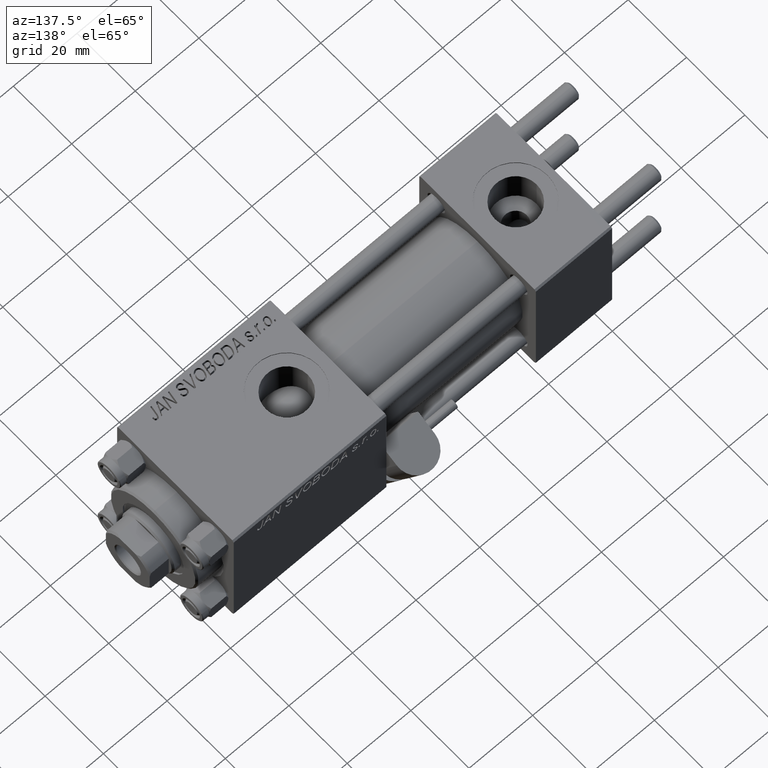
[diagram: clean part render]
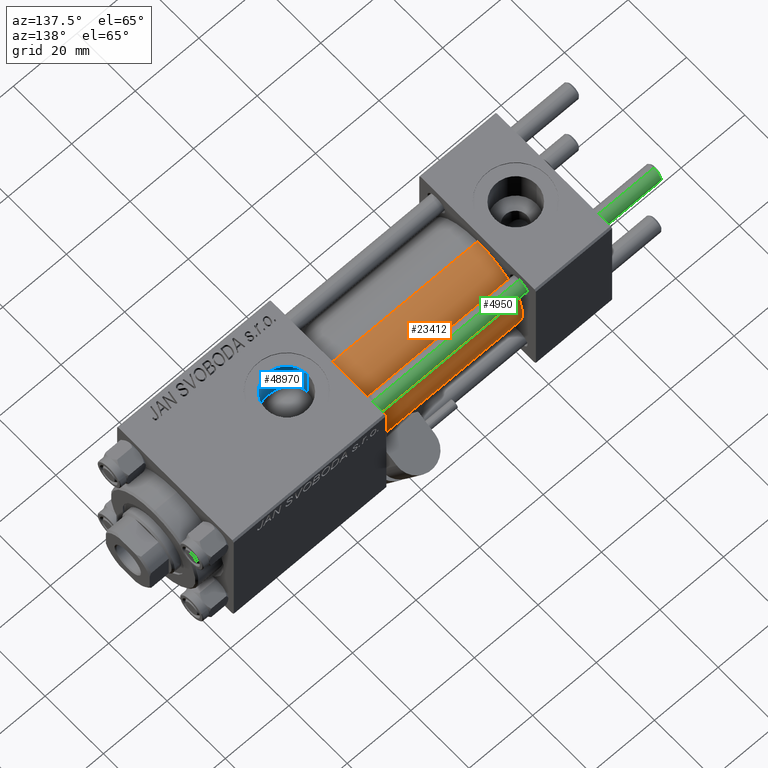
[diagram: same view with three faces highlighted in distinct colors, each labeled with its STEP entity id]
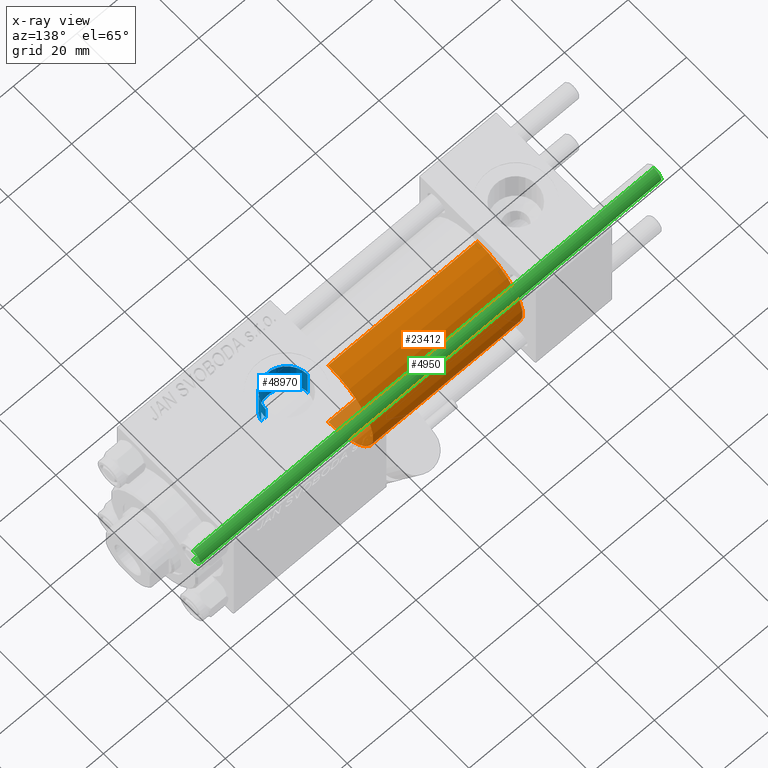
[diagram: x-ray of the same camera — body ghosted, the three highlighted faces saturated]
A machine part, auxiliary view with three faces highlighted in distinct colors.
The next image is the same camera in x-ray (body ghosted, the three faces saturated) — at least one of them is partly hidden behind the body in this view.
Their STEP definitions:

[orange] entity #23412 — the highlighted cylindrical surface (partial cylindrical patch) has radius 15.5 mm, axis along (-1, -0, -0).
#519 = DIRECTION ( 'NONE',  ( 0.000000000000000000, 0.000000000000000000, -1.000000000000000000 ) ) ;
#1737 = CARTESIAN_POINT ( 'NONE',  ( 71.00000000000001421, 0.000000000000000000, 15.50000000000000000 ) ) ;
#1987 = VECTOR ( 'NONE', #31529, 1000.000000000000000 ) ;
#4067 = EDGE_CURVE ( 'NONE', #33613, #42133, #45299, .T. ) ;
#7397 = LINE ( 'NONE', #11504, #1987 ) ;
#7770 = CARTESIAN_POINT ( 'NONE',  ( 71.00000000000001421, 0.000000000000000000, 0.000000000000000000 ) ) ;
#8274 = CYLINDRICAL_SURFACE ( 'NONE', #44894, 15.50000000000000000 ) ;
#8680 = LINE ( 'NONE', #1737, #50534 ) ;
#8691 = CARTESIAN_POINT ( 'NONE',  ( 71.00000000000001421, 0.000000000000000000, 15.50000000000000000 ) ) ;
#8722 = ORIENTED_EDGE ( 'NONE', *, *, #4067, .F. ) ;
#8725 = DIRECTION ( 'NONE',  ( 1.000000000000000000, 0.000000000000000000, 0.000000000000000000 ) ) ;
#11504 = CARTESIAN_POINT ( 'NONE',  ( 71.00000000000001421, 1.898202538678397557E-15, -15.50000000000000000 ) ) ;
#15032 = EDGE_CURVE ( 'NONE', #33613, #45738, #7397, .T. ) ;
#15347 = CIRCLE ( 'NONE', #40792, 15.50000000000000000 ) ;
#16229 = FACE_OUTER_BOUND ( 'NONE', #45520, .T. ) ;
#20774 = CARTESIAN_POINT ( 'NONE',  ( 71.00000000000001421, 0.000000000000000000, 0.000000000000000000 ) ) ;
#21261 = EDGE_CURVE ( 'NONE', #42133, #22889, #8680, .T. ) ;
#22889 = VERTEX_POINT ( 'NONE', #30825 ) ;
#23347 = EDGE_CURVE ( 'NONE', #45738, #22889, #15347, .T. ) ;
#23412 = ADVANCED_FACE ( 'NONE', ( #16229 ), #8274, .T. ) ;
#23426 = DIRECTION ( 'NONE',  ( 0.000000000000000000, 0.000000000000000000, 1.000000000000000000 ) ) ;
#23830 = CARTESIAN_POINT ( 'NONE',  ( 24.00000000000000000, 1.898202538678397557E-15, -15.50000000000000000 ) ) ;
#28029 = CARTESIAN_POINT ( 'NONE',  ( 71.00000000000001421, 1.898202538678397557E-15, -15.50000000000000000 ) ) ;
#28248 = ORIENTED_EDGE ( 'NONE', *, *, #15032, .T. ) ;
#30643 = CARTESIAN_POINT ( 'NONE',  ( 24.00000000000000000, 0.000000000000000000, 0.000000000000000000 ) ) ;
#30825 = CARTESIAN_POINT ( 'NONE',  ( 24.00000000000000000, 0.000000000000000000, 15.50000000000000000 ) ) ;
#31529 = DIRECTION ( 'NONE',  ( -1.000000000000000000, -0.000000000000000000, -0.000000000000000000 ) ) ;
#33483 = DIRECTION ( 'NONE',  ( 1.000000000000000000, 0.000000000000000000, 0.000000000000000000 ) ) ;
#33613 = VERTEX_POINT ( 'NONE', #28029 ) ;
#34745 = DIRECTION ( 'NONE',  ( -1.000000000000000000, -0.000000000000000000, -0.000000000000000000 ) ) ;
#38735 = AXIS2_PLACEMENT_3D ( 'NONE', #20774, #8725, #519 ) ;
#38992 = ORIENTED_EDGE ( 'NONE', *, *, #21261, .F. ) ;
#40792 = AXIS2_PLACEMENT_3D ( 'NONE', #30643, #33483, #42204 ) ;
#42133 = VERTEX_POINT ( 'NONE', #8691 ) ;
#42204 = DIRECTION ( 'NONE',  ( 0.000000000000000000, 0.000000000000000000, 1.000000000000000000 ) ) ;
#44894 = AXIS2_PLACEMENT_3D ( 'NONE', #7770, #34745, #23426 ) ;
#45299 = CIRCLE ( 'NONE', #38735, 15.50000000000000000 ) ;
#45520 = EDGE_LOOP ( 'NONE', ( #8722, #28248, #46235, #38992 ) ) ;
#45738 = VERTEX_POINT ( 'NONE', #23830 ) ;
#46235 = ORIENTED_EDGE ( 'NONE', *, *, #23347, .T. ) ;
#48459 = DIRECTION ( 'NONE',  ( -1.000000000000000000, -0.000000000000000000, -0.000000000000000000 ) ) ;
#50534 = VECTOR ( 'NONE', #48459, 1000.000000000000000 ) ;

[blue] entity #48970 — the highlighted cylindrical surface (edge-blend (fillet) strip) has radius 6.58 mm, axis along (0, 0, -1).
#1628 = CARTESIAN_POINT ( 'NONE',  ( 77.56705469300284506, -1.397686090543303283, 9.903818455115036556 ) ) ;
#1880 = CARTESIAN_POINT ( 'NONE',  ( 89.01171256368644435, -4.281038711601321545, 9.043476487246550732 ) ) ;
#2135 = CARTESIAN_POINT ( 'NONE',  ( 89.68316260257665817, -3.338928794743214468, 9.433056230293079381 ) ) ;
#2418 = EDGE_CURVE ( 'NONE', #23406, #45169, #11478, .T. ) ;
#2578 = VERTEX_POINT ( 'NONE', #9646 ) ;
#2648 = CARTESIAN_POINT ( 'NONE',  ( 90.58000000000156149, -0.3230844264541308797, 14.99999999999999822 ) ) ;
#3185 = EDGE_CURVE ( 'NONE', #26841, #23406, #41148, .T. ) ;
#3814 = EDGE_CURVE ( 'NONE', #24486, #2578, #40617, .T. ) ;
#5460 = CARTESIAN_POINT ( 'NONE',  ( 83.43610688730976221, -6.558932760434257325, 7.548550817887899278 ) ) ;
#5716 = CARTESIAN_POINT ( 'NONE',  ( 78.57242859662287060, -3.724876030303978069, 9.281895439158068584 ) ) ;
#5966 = CARTESIAN_POINT ( 'NONE',  ( 81.50365122394816808, -6.100731835174567408, 7.925108619061488113 ) ) ;
#6226 = CARTESIAN_POINT ( 'NONE',  ( 83.84132420776212768, -6.581215419008478840, 7.529131557805247787 ) ) ;
#6485 = CARTESIAN_POINT ( 'NONE',  ( 90.03601729897108896, -2.648259396322893089, 9.649752199410302822 ) ) ;
#6605 = ORIENTED_EDGE ( 'NONE', *, *, #35979, .T. ) ;
#7189 = DIRECTION ( 'NONE',  ( 1.000000000000000000, 0.000000000000000000, 0.000000000000000000 ) ) ;
#9310 = CARTESIAN_POINT ( 'NONE',  ( 78.16834223545102134, -3.071777053897142729, 9.522948337697433985 ) ) ;
#9567 = CARTESIAN_POINT ( 'NONE',  ( 86.39211994537743067, -6.132805105780794186, 7.899218132206713427 ) ) ;
#9646 = CARTESIAN_POINT ( 'NONE',  ( 90.30000000000001137, -1.899052395280420136, 14.87930105885285670 ) ) ;
#9820 = CARTESIAN_POINT ( 'NONE',  ( 86.92434068310684836, -5.907044672534588869, 8.071096920454994716 ) ) ;
#9827 = CARTESIAN_POINT ( 'NONE',  ( 90.39284622331669539, -1.591040247564623700, 14.91861279833453757 ) ) ;
#10070 = CARTESIAN_POINT ( 'NONE',  ( 88.75695250607545006, -4.561896889324866144, 8.903678834413629062 ) ) ;
#10344 = CARTESIAN_POINT ( 'NONE',  ( 90.30000000000001137, -1.899052395280420136, 14.87930105885285670 ) ) ;
#11478 = LINE ( 'NONE', #31502, #23879 ) ;
#13172 = CARTESIAN_POINT ( 'NONE',  ( 90.18384735178129574, -2.284382302762963501, 9.743491762341799145 ) ) ;
#13421 = CARTESIAN_POINT ( 'NONE',  ( 86.21002104074251804, -6.200884946022790167, 7.845702732414576275 ) ) ;
#13671 = CARTESIAN_POINT ( 'NONE',  ( 78.46622740148208663, -3.565203004854784474, 9.344512687240586146 ) ) ;
#13923 = CARTESIAN_POINT ( 'NONE',  ( 84.04743762832036680, -6.582974628388996940, 7.527585999843090292 ) ) ;
#14111 = B_SPLINE_CURVE_WITH_KNOTS ( 'NONE', 3,
 ( #43736, #13172, #6485, #2135, #49106, #1880, #10070, #45516, #33453, #40649, #28835, #32691, #9820, #9567, #13421, #45253, #25476, #45010, #48855, #13923, #6226, #5460, #29855, #25227, #41411, #41671, #41147, #5966, #17771, #21371, #44496, #33198, #21117, #40907, #21880, #5716, #13671, #9310, #37822, #37055, #29348, #22138, #1628, #37567, #17517, #17012 ),
 .UNSPECIFIED., .F., .F.,
 ( 4, 2, 2, 2, 2, 2, 2, 2, 2, 2, 2, 2, 2, 2, 2, 2, 2, 2, 2, 2, 2, 2, 4 ),
 ( 0.000000000000000000, 0.001207791230099372441, 0.002415582460198744882, 0.003623373690298115155, 0.004227269305347786631, 0.004831164920397457672, 0.006038956150496800623, 0.006642851765546489880, 0.007246747380596180003, 0.008454538610695601017, 0.009058434225745329305, 0.009662329840795061062, 0.01026622545584479108, 0.01087012107089451937, 0.01207791230099397942, 0.01328570353109343946, 0.01449349476119290124, 0.01509739037624264514, 0.01570128599129239078, 0.01690907722139185429, 0.01751297283644158778, 0.01811686845149132127, 0.01932465968159079173 ),
 .UNSPECIFIED. ) ;
#15728 = DIRECTION ( 'NONE',  ( 0.000000000000000000, 0.000000000000000000, -1.000000000000000000 ) ) ;
#16722 = CARTESIAN_POINT ( 'NONE',  ( 90.30000000000001137, -1.899052395280420136, 42.80000000000000426 ) ) ;
#17012 = CARTESIAN_POINT ( 'NONE',  ( 77.41999999999846693, 1.225496641077837722E-15, 9.999999999999998224 ) ) ;
#17517 = CARTESIAN_POINT ( 'NONE',  ( 77.41999999999848114, -0.4081853129699585803, 10.00000000000000711 ) ) ;
#17771 = CARTESIAN_POINT ( 'NONE',  ( 81.15150766959031614, -5.943877247083126925, 8.044991576418468071 ) ) ;
#18921 = VECTOR ( 'NONE', #22802, 1000.000000000000000 ) ;
#19332 = CARTESIAN_POINT ( 'NONE',  ( 84.00000000000000000, -1.734723475976806897E-15, 42.80000000000000426 ) ) ;
#20328 = ORIENTED_EDGE ( 'NONE', *, *, #3814, .F. ) ;
#20346 = DIRECTION ( 'NONE',  ( -1.000000000000000000, 0.000000000000000000, 0.000000000000000000 ) ) ;
#20362 = ORIENTED_EDGE ( 'NONE', *, *, #2418, .F. ) ;
#21086 = DIRECTION ( 'NONE',  ( -0.000000000000000000, -0.000000000000000000, 1.000000000000000000 ) ) ;
#21117 = CARTESIAN_POINT ( 'NONE',  ( 79.29730408322323854, -4.618177244596259889, 8.875509752877485781 ) ) ;
#21371 = CARTESIAN_POINT ( 'NONE',  ( 80.48004077057568395, -5.572564248888139282, 8.306509127488531874 ) ) ;
#21880 = CARTESIAN_POINT ( 'NONE',  ( 78.79875737437667738, -4.034886358906389248, 9.151392050136836431 ) ) ;
#22138 = CARTESIAN_POINT ( 'NONE',  ( 77.61241581301695192, -1.592248641449762747, 9.874366003595781649 ) ) ;
#22802 = DIRECTION ( 'NONE',  ( 0.000000000000000000, 0.000000000000000000, -1.000000000000000000 ) ) ;
#23406 = VERTEX_POINT ( 'NONE', #24188 ) ;
#23789 = DIRECTION ( 'NONE',  ( 0.000000000000000000, 0.000000000000000000, -1.000000000000000000 ) ) ;
#23879 = VECTOR ( 'NONE', #23789, 1000.000000000000000 ) ;
#24188 = CARTESIAN_POINT ( 'NONE',  ( 77.41999999999846693, -1.734723475976806897E-15, 19.80000000000000071 ) ) ;
#24486 = VERTEX_POINT ( 'NONE', #49852 ) ;
#25227 = CARTESIAN_POINT ( 'NONE',  ( 82.83871781191031403, -6.479820246555592966, 7.616654439233103702 ) ) ;
#25476 = CARTESIAN_POINT ( 'NONE',  ( 85.64143006621837628, -6.375121249720390182, 7.704616833470068649 ) ) ;
#25740 = CARTESIAN_POINT ( 'NONE',  ( 90.46247493449395449, -1.278752734038846484, 14.94875937294843737 ) ) ;
#26313 = CARTESIAN_POINT ( 'NONE',  ( 90.58000000000154728, -9.289058821376599092E-16, 19.80000000000000071 ) ) ;
#26316 = EDGE_CURVE ( 'NONE', #24486, #45169, #14111, .T. ) ;
#26841 = VERTEX_POINT ( 'NONE', #26313 ) ;
#27027 = ORIENTED_EDGE ( 'NONE', *, *, #35102, .T. ) ;
#27267 = B_SPLINE_CURVE_WITH_KNOTS ( 'NONE', 3,
 ( #45018, #2648, #49113, #25740, #9827, #10344 ),
 .UNSPECIFIED., .F., .F.,
 ( 4, 2, 4 ),
 ( 0.001923267627926015643, 0.002881828648815649985, 0.003840389669705283893 ),
 .UNSPECIFIED. ) ;
#27557 = FACE_OUTER_BOUND ( 'NONE', #36613, .T. ) ;
#28835 = CARTESIAN_POINT ( 'NONE',  ( 87.74050804270864035, -5.416766998257490862, 8.406790300727948306 ) ) ;
#29348 = CARTESIAN_POINT ( 'NONE',  ( 77.72104259078042787, -1.977670684214428043, 9.804446867313098224 ) ) ;
#29855 = CARTESIAN_POINT ( 'NONE',  ( 83.23563096081821300, -6.538530929802691460, 7.566314066596407706 ) ) ;
#31502 = CARTESIAN_POINT ( 'NONE',  ( 77.41999999999846693, -1.734723475976806897E-15, 42.80000000000000426 ) ) ;
#32691 = CARTESIAN_POINT ( 'NONE',  ( 87.26053252520590320, -5.728070196491263921, 8.200680661955367157 ) ) ;
#32984 = VECTOR ( 'NONE', #21086, 1000.000000000000000 ) ;
#33198 = CARTESIAN_POINT ( 'NONE',  ( 79.57031396582577543, -4.880372653833860319, 8.732632965334568453 ) ) ;
#33453 = CARTESIAN_POINT ( 'NONE',  ( 88.19718467613775204, -5.071121963172631197, 8.619888602053425330 ) ) ;
#35102 = EDGE_CURVE ( 'NONE', #26841, #45793, #38721, .T. ) ;
#35419 = CARTESIAN_POINT ( 'NONE',  ( 84.00000000000000000, -1.734723475976806897E-15, 19.80000000000000071 ) ) ;
#35476 = ORIENTED_EDGE ( 'NONE', *, *, #26316, .T. ) ;
#35979 = EDGE_CURVE ( 'NONE', #45793, #2578, #27267, .T. ) ;
#36613 = EDGE_LOOP ( 'NONE', ( #45232, #27027, #6605, #20328, #35476, #20362 ) ) ;
#37055 = CARTESIAN_POINT ( 'NONE',  ( 77.78468472322818172, -2.169203254887546617, 9.763745855050723677 ) ) ;
#37567 = CARTESIAN_POINT ( 'NONE',  ( 77.45763783829498550, -0.8084208477571691587, 9.975121118623741623 ) ) ;
#37728 = CARTESIAN_POINT ( 'NONE',  ( 90.58000000000154728, -9.289058821376597120E-16, 42.80000000000000426 ) ) ;
#37822 = CARTESIAN_POINT ( 'NONE',  ( 77.99714712711040931, -2.723766581249583485, 9.629423614267258458 ) ) ;
#38721 = LINE ( 'NONE', #37728, #18921 ) ;
#40617 = LINE ( 'NONE', #16722, #32984 ) ;
#40649 = CARTESIAN_POINT ( 'NONE',  ( 87.89699318866286148, -5.305288046703262594, 8.477775428654018341 ) ) ;
#40907 = CARTESIAN_POINT ( 'NONE',  ( 78.91948560029506154, -4.185857250486422210, 9.083179932574980242 ) ) ;
#41147 = CARTESIAN_POINT ( 'NONE',  ( 82.06128195139868353, -6.290973204691355569, 7.773687993804112573 ) ) ;
#41148 = CIRCLE ( 'NONE', #45254, 6.580000000001542837 ) ;
#41411 = CARTESIAN_POINT ( 'NONE',  ( 82.64228046384747017, -6.441510615516904181, 7.649229527461429257 ) ) ;
#41671 = CARTESIAN_POINT ( 'NONE',  ( 82.25327158685063011, -6.347078162380216604, 7.727766182684421281 ) ) ;
#43211 = AXIS2_PLACEMENT_3D ( 'NONE', #19332, #15728, #20346 ) ;
#43736 = CARTESIAN_POINT ( 'NONE',  ( 90.30000000000001137, -1.899052395280420136, 9.818024241158690657 ) ) ;
#43795 = CARTESIAN_POINT ( 'NONE',  ( 77.41999999999846693, 1.225496641077837722E-15, 9.999999999999998224 ) ) ;
#44496 = CARTESIAN_POINT ( 'NONE',  ( 80.16020215073048405, -5.356874842517142632, 8.448716332623810388 ) ) ;
#44622 = CARTESIAN_POINT ( 'NONE',  ( 90.58000000000154728, 1.836897619300433381E-15, 15.00000000000000000 ) ) ;
#45010 = CARTESIAN_POINT ( 'NONE',  ( 85.05563542025694801, -6.507095227759212008, 7.594134426896898660 ) ) ;
#45018 = CARTESIAN_POINT ( 'NONE',  ( 90.58000000000154728, 1.836897619300433381E-15, 15.00000000000000000 ) ) ;
#45169 = VERTEX_POINT ( 'NONE', #43795 ) ;
#45232 = ORIENTED_EDGE ( 'NONE', *, *, #3185, .F. ) ;
#45253 = CARTESIAN_POINT ( 'NONE',  ( 85.83530013697877337, -6.321933289868085559, 7.748495657718812879 ) ) ;
#45254 = AXIS2_PLACEMENT_3D ( 'NONE', #35419, #47229, #7189 ) ;
#45516 = CARTESIAN_POINT ( 'NONE',  ( 88.34134544482054707, -4.948221379670047604, 8.691185487698470880 ) ) ;
#45793 = VERTEX_POINT ( 'NONE', #44622 ) ;
#47070 = CYLINDRICAL_SURFACE ( 'NONE', #43211, 6.580000000001542837 ) ;
#47229 = DIRECTION ( 'NONE',  ( -0.000000000000000000, -0.000000000000000000, -1.000000000000000000 ) ) ;
#48855 = CARTESIAN_POINT ( 'NONE',  ( 84.65744280686338641, -6.559709605006789346, 7.547889352008899877 ) ) ;
#48970 = ADVANCED_FACE ( 'NONE', ( #27557 ), #47070, .F. ) ;
#49106 = CARTESIAN_POINT ( 'NONE',  ( 89.47667727346387778, -3.667500690329295931, 9.309199649381490360 ) ) ;
#49113 = CARTESIAN_POINT ( 'NONE',  ( 90.55605924908761040, -0.6456608678150235203, 14.98945420583744870 ) ) ;
#49852 = CARTESIAN_POINT ( 'NONE',  ( 90.30000000000001137, -1.899052395280420136, 9.818024241158690657 ) ) ;

[green] entity #4950 — the highlighted cylindrical surface (edge-blend (fillet) strip) has radius 2.5 mm, axis along (-1, -0, -0).
#3376 = EDGE_CURVE ( 'NONE', #9703, #27393, #6113, .T. ) ;
#4242 = VECTOR ( 'NONE', #44649, 1000.000000000000000 ) ;
#4950 = ADVANCED_FACE ( 'NONE', ( #44166 ), #24642, .T. ) ;
#5362 = VERTEX_POINT ( 'NONE', #47131 ) ;
#6073 = AXIS2_PLACEMENT_3D ( 'NONE', #36793, #32926, #28317 ) ;
#6113 = LINE ( 'NONE', #18435, #4242 ) ;
#9703 = VERTEX_POINT ( 'NONE', #30786 ) ;
#10366 = ORIENTED_EDGE ( 'NONE', *, *, #15491, .T. ) ;
#15397 = CARTESIAN_POINT ( 'NONE',  ( -2.500000000000000000, 0.000000000000000000, 146.0000000000000000 ) ) ;
#15491 = EDGE_CURVE ( 'NONE', #21622, #9703, #29030, .T. ) ;
#15641 = DIRECTION ( 'NONE',  ( -0.000000000000000000, -0.000000000000000000, -1.000000000000000000 ) ) ;
#17078 = ORIENTED_EDGE ( 'NONE', *, *, #3376, .T. ) ;
#18435 = CARTESIAN_POINT ( 'NONE',  ( 2.500000000000000000, 3.061616997868383141E-16, 146.0000000000000000 ) ) ;
#20783 = CARTESIAN_POINT ( 'NONE',  ( 0.000000000000000000, 0.000000000000000000, 146.0000000000000000 ) ) ;
#21203 = ORIENTED_EDGE ( 'NONE', *, *, #45068, .T. ) ;
#21622 = VERTEX_POINT ( 'NONE', #31346 ) ;
#22299 = DIRECTION ( 'NONE',  ( -1.000000000000000000, 0.000000000000000000, 0.000000000000000000 ) ) ;
#22923 = EDGE_LOOP ( 'NONE', ( #10366, #17078, #21203, #42699 ) ) ;
#24642 = CYLINDRICAL_SURFACE ( 'NONE', #30564, 2.500000000000000000 ) ;
#27393 = VERTEX_POINT ( 'NONE', #34165 ) ;
#28317 = DIRECTION ( 'NONE',  ( 1.000000000000000000, 0.000000000000000000, 0.000000000000000000 ) ) ;
#29030 = CIRCLE ( 'NONE', #6073, 2.500000000000000000 ) ;
#30564 = AXIS2_PLACEMENT_3D ( 'NONE', #20783, #36722, #22299 ) ;
#30786 = CARTESIAN_POINT ( 'NONE',  ( 2.500000000000000000, 3.061616997868383141E-16, 145.5000000000000284 ) ) ;
#31346 = CARTESIAN_POINT ( 'NONE',  ( -2.500000000000000000, 0.000000000000000000, 145.5000000000000284 ) ) ;
#32926 = DIRECTION ( 'NONE',  ( 0.000000000000000000, 0.000000000000000000, -1.000000000000000000 ) ) ;
#34165 = CARTESIAN_POINT ( 'NONE',  ( 2.500000000000000000, 3.061616997868383141E-16, 0.5000000000000559552 ) ) ;
#34582 = DIRECTION ( 'NONE',  ( 1.000000000000000000, 0.000000000000000000, 0.000000000000000000 ) ) ;
#35697 = AXIS2_PLACEMENT_3D ( 'NONE', #38442, #46130, #34582 ) ;
#35771 = VECTOR ( 'NONE', #15641, 1000.000000000000000 ) ;
#36722 = DIRECTION ( 'NONE',  ( -0.000000000000000000, -0.000000000000000000, -1.000000000000000000 ) ) ;
#36793 = CARTESIAN_POINT ( 'NONE',  ( 0.000000000000000000, 0.000000000000000000, 145.5000000000000284 ) ) ;
#38442 = CARTESIAN_POINT ( 'NONE',  ( 0.000000000000000000, 0.000000000000000000, 0.5000000000000559552 ) ) ;
#42699 = ORIENTED_EDGE ( 'NONE', *, *, #47319, .F. ) ;
#44166 = FACE_OUTER_BOUND ( 'NONE', #22923, .T. ) ;
#44649 = DIRECTION ( 'NONE',  ( -0.000000000000000000, -0.000000000000000000, -1.000000000000000000 ) ) ;
#45068 = EDGE_CURVE ( 'NONE', #27393, #5362, #47169, .T. ) ;
#46130 = DIRECTION ( 'NONE',  ( -0.000000000000000000, -0.000000000000000000, 1.000000000000000000 ) ) ;
#46480 = LINE ( 'NONE', #15397, #35771 ) ;
#47131 = CARTESIAN_POINT ( 'NONE',  ( -2.500000000000000000, 0.000000000000000000, 0.5000000000000559552 ) ) ;
#47169 = CIRCLE ( 'NONE', #35697, 2.500000000000000000 ) ;
#47319 = EDGE_CURVE ( 'NONE', #21622, #5362, #46480, .T. ) ;